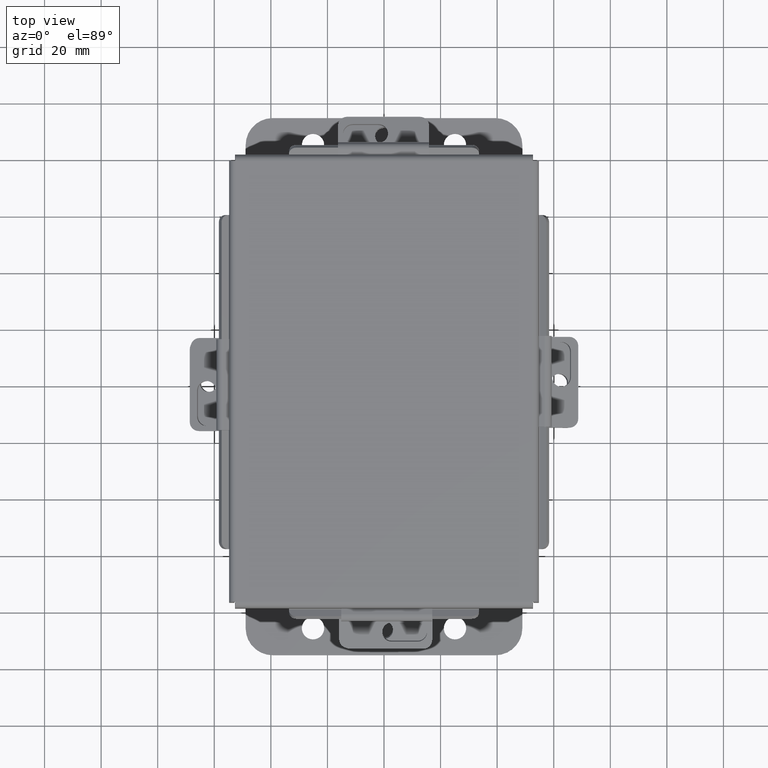
[diagram: clean part render]
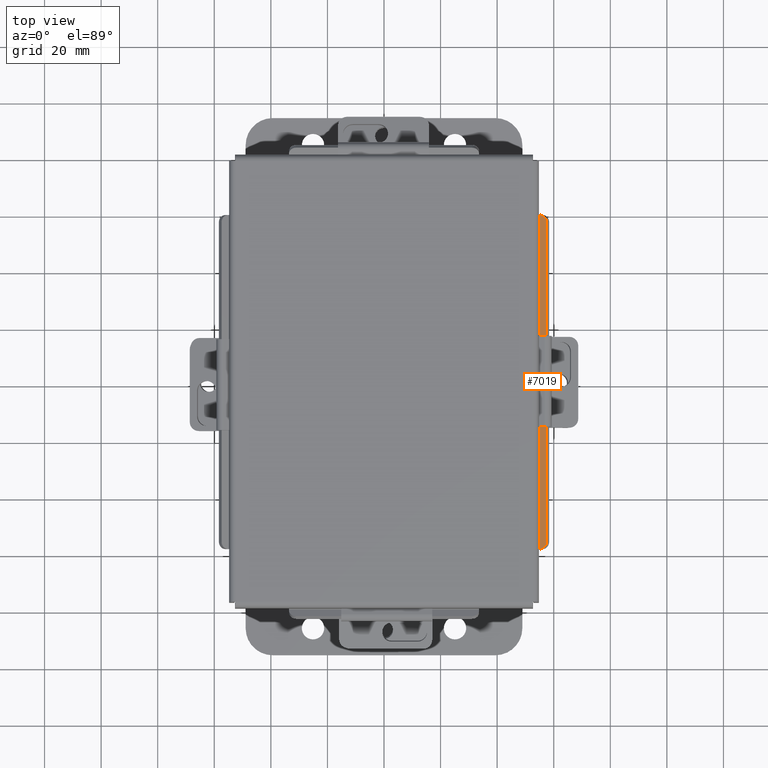
[diagram: same view with one face highlighted and labeled with its STEP entity id]
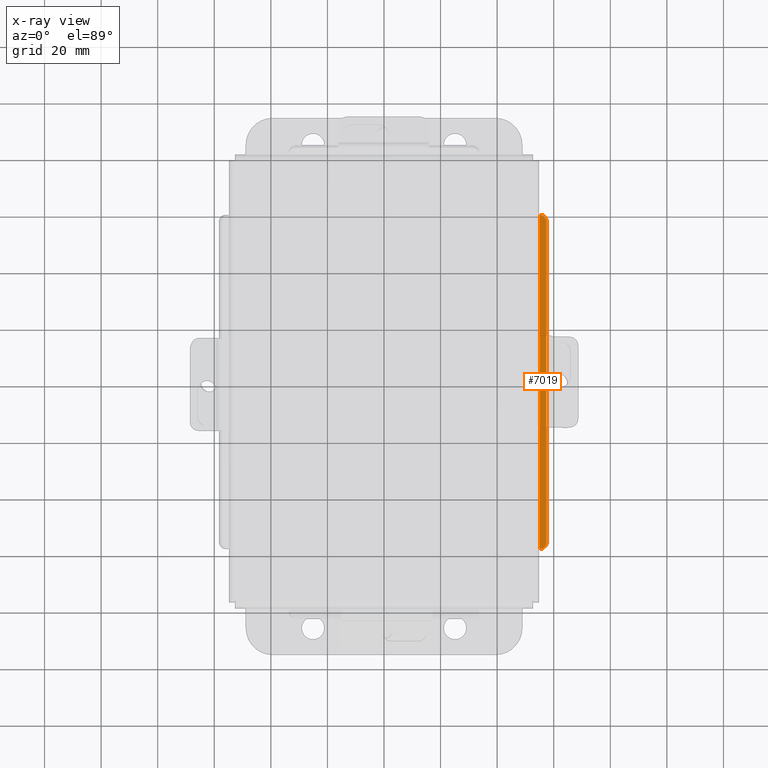
[diagram: x-ray of the same camera — body ghosted, the highlighted face saturated]
A machine part, top view. The second image highlights one B-rep face of the part: STEP entity #7019.
The next image is the same camera in x-ray: the body ghosted, the highlighted face saturated — about 0% of this face is hidden behind the body in this view.
In plain terms, the highlighted planar face has unit normal (-0.5, -0, 0.866).
Its self-contained STEP definition (entity closure, byte-faithful):
#93 = VERTEX_POINT ( 'NONE', #2251 ) ;
#116 = LINE ( 'NONE', #9369, #9055 ) ;
#202 = DIRECTION ( 'NONE',  ( 0.5000000000000012200, 0.0000000000000000000, -0.8660254037844379300 ) ) ;
#282 = DIRECTION ( 'NONE',  ( -0.8660254037844377100, -0.0000000000000000000, -0.5000000000000012200 ) ) ;
#603 = DIRECTION ( 'NONE',  ( 0.0000000000000000000, 1.000000000000000000, -1.175251776144365200E-016 ) ) ;
#1029 = CIRCLE ( 'NONE', #7232, 0.1000000000000000600 ) ;
#1034 = EDGE_CURVE ( 'NONE', #3524, #93, #7458, .T. ) ;
#1269 = CARTESIAN_POINT ( 'NONE',  ( -2.260706350946112100, 2.224478932188135500, 0.4269920976626969100 ) ) ;
#1349 = FACE_OUTER_BOUND ( 'NONE', #5577, .T. ) ;
#1384 = VECTOR ( 'NONE', #603, 39.37007874015748100 ) ;
#1602 = ORIENTED_EDGE ( 'NONE', *, *, #3296, .T. ) ;
#1761 = DIRECTION ( 'NONE',  ( -0.0000000000000000000, -1.000000000000000000, -0.0000000000000000000 ) ) ;
#1965 = DIRECTION ( 'NONE',  ( 0.5000000000000012200, 0.0000000000000000000, -0.8660254037844379300 ) ) ;
#2251 = CARTESIAN_POINT ( 'NONE',  ( -2.174103810567668200, 2.324478932188135600, 0.4769920976626970700 ) ) ;
#2655 = EDGE_CURVE ( 'NONE', #6455, #8347, #9399, .T. ) ;
#2879 = VERTEX_POINT ( 'NONE', #1269 ) ;
#2893 = PLANE ( 'NONE',  #5212 ) ;
#2921 = EDGE_CURVE ( 'NONE', #8004, #3524, #7310, .T. ) ;
#2937 = CARTESIAN_POINT ( 'NONE',  ( -2.169750000000002700, 2.324478932188135600, 0.4795057713659395800 ) ) ;
#3296 = EDGE_CURVE ( 'NONE', #2879, #93, #1029, .T. ) ;
#3524 = VERTEX_POINT ( 'NONE', #2937 ) ;
#4172 = DIRECTION ( 'NONE',  ( 0.8660254037844379300, -0.0000000000000000000, 0.5000000000000012200 ) ) ;
#4334 = ORIENTED_EDGE ( 'NONE', *, *, #2921, .F. ) ;
#4387 = DIRECTION ( 'NONE',  ( 0.5000000000000012200, 0.0000000000000000000, -0.8660254037844379300 ) ) ;
#4648 = CARTESIAN_POINT ( 'NONE',  ( -2.174103810567668200, -2.224478932188135100, 0.4769920976626970700 ) ) ;
#4728 = ORIENTED_EDGE ( 'NONE', *, *, #1034, .F. ) ;
#4750 = CARTESIAN_POINT ( 'NONE',  ( -2.260706350946112100, 2.324478932188135600, 0.4269920976626969100 ) ) ;
#4880 = EDGE_CURVE ( 'NONE', #6455, #8004, #116, .T. ) ;
#4993 = CARTESIAN_POINT ( 'NONE',  ( -2.260706350946112100, -2.224478932188135100, 0.4269920976626969100 ) ) ;
#5040 = CARTESIAN_POINT ( 'NONE',  ( -2.169750000000002300, -2.324478932188135200, 0.4795057713659397500 ) ) ;
#5212 = AXIS2_PLACEMENT_3D ( 'NONE', #8843, #4387, #9572 ) ;
#5394 = DIRECTION ( 'NONE',  ( -0.8660254037844379300, 0.0000000000000000000, -0.5000000000000012200 ) ) ;
#5430 = VECTOR ( 'NONE', #1761, 39.37007874015748100 ) ;
#5577 = EDGE_LOOP ( 'NONE', ( #8222, #9596, #9199, #1602, #4728, #4334 ) ) ;
#6164 = EDGE_CURVE ( 'NONE', #2879, #8347, #9605, .T. ) ;
#6428 = CARTESIAN_POINT ( 'NONE',  ( -2.174103810567668200, 2.224478932188135500, 0.4769920976626969600 ) ) ;
#6455 = VERTEX_POINT ( 'NONE', #8150 ) ;
#7019 = ADVANCED_FACE ( 'NONE', ( #1349 ), #2893, .T. ) ;
#7165 = DIRECTION ( 'NONE',  ( -0.8660254037844379300, 0.0000000000000000000, -0.5000000000000012200 ) ) ;
#7232 = AXIS2_PLACEMENT_3D ( 'NONE', #6428, #1965, #7165 ) ;
#7310 = LINE ( 'NONE', #5040, #1384 ) ;
#7458 = LINE ( 'NONE', #4750, #9193 ) ;
#8004 = VERTEX_POINT ( 'NONE', #9108 ) ;
#8150 = CARTESIAN_POINT ( 'NONE',  ( -2.174103810567668200, -2.324478932188135200, 0.4769920976626970700 ) ) ;
#8222 = ORIENTED_EDGE ( 'NONE', *, *, #4880, .F. ) ;
#8347 = VERTEX_POINT ( 'NONE', #4993 ) ;
#8595 = AXIS2_PLACEMENT_3D ( 'NONE', #4648, #202, #5394 ) ;
#8843 = CARTESIAN_POINT ( 'NONE',  ( -0.7500695896320818100, 0.0000000000000000000, 1.299158638455099500 ) ) ;
#9055 = VECTOR ( 'NONE', #4172, 39.37007874015748100 ) ;
#9108 = CARTESIAN_POINT ( 'NONE',  ( -2.169750000000002700, -2.324478932188135200, 0.4795057713659395800 ) ) ;
#9152 = CARTESIAN_POINT ( 'NONE',  ( -2.260706350946112100, -2.324478932188135200, 0.4269920976626969100 ) ) ;
#9193 = VECTOR ( 'NONE', #282, 39.37007874015748900 ) ;
#9199 = ORIENTED_EDGE ( 'NONE', *, *, #6164, .F. ) ;
#9369 = CARTESIAN_POINT ( 'NONE',  ( -2.156250000000002200, -2.324478932188135200, 0.4872999999999996200 ) ) ;
#9399 = CIRCLE ( 'NONE', #8595, 0.1000000000000000600 ) ;
#9572 = DIRECTION ( 'NONE',  ( -0.8660254037844379300, 0.0000000000000000000, -0.5000000000000012200 ) ) ;
#9596 = ORIENTED_EDGE ( 'NONE', *, *, #2655, .T. ) ;
#9605 = LINE ( 'NONE', #9152, #5430 ) ;